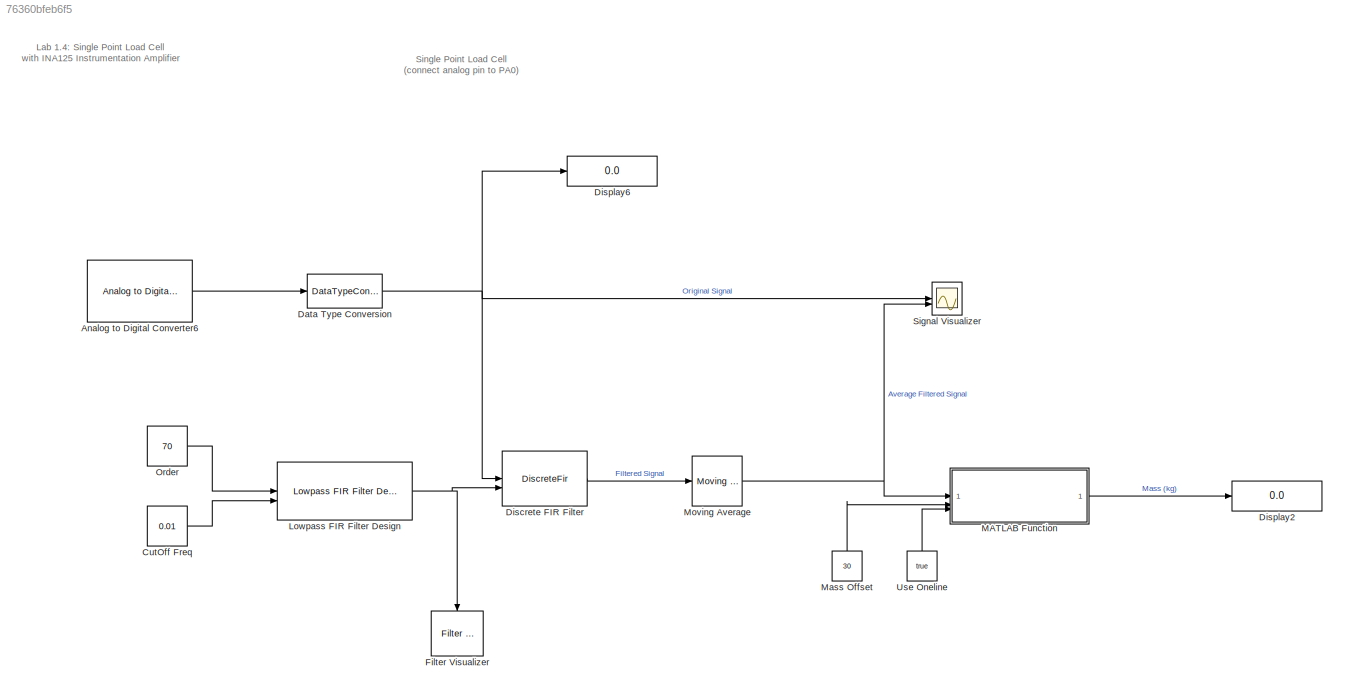
MODEL slx_76360bfeb6f5
KIND model
CONFIG AbsTol = auto
CONFIG EnableMultiTasking = on
CONFIG FixedStep = auto
CONFIG MaxStep = auto
CONFIG MinStep = auto
CONFIG RelTol = 1e-3
CONFIG SampleTimeConstraint = Unconstrained
CONFIG SolverName = FixedStepAuto
CONFIG StartTime = 0.0
CONFIG StopTime = inf
BLOCK [Reference] Analog to Digital Converter6  REF=stm32f4xxblockslib/Analog to Digital Converter
  LibrarySourceBlock = stm32g4xxblockslib/Analog to Digital Converter
  SourceBlock = stm32f4xxblockslib/Analog to Digital Converter
  SourceType = stm32cube.blocks.AnalogInput
BLOCK [Constant] CutOff Freq
  SampleTime = -1
  Value = 0.01
  VectorParams1D = off
BLOCK [DataTypeConversion] Data Type Conversion
  OutDataTypeStr = double
  RndMeth = Floor
  SaturateOnIntegerOverflow = off
BLOCK [DiscreteFir] Discrete FIR Filter
  CloseFcn = dspblkCoreblockFVToolHelper(gcbh,'close');
  CoefSource = Input port
  CopyFcn = dspblkCoreblockFVToolHelper(gcbh,'copy');
  DeleteFcn = dspblkCoreblockFVToolHelper(gcbh,'close');
  InputPortMap = u0,u1
  LoadFcn = dspblkCoreblockFVToolHelper(gcbh,'load');
  ModelCloseFcn = dspblkCoreblockFVToolHelper(gcbh,'close');
  OutputPortMap = o0
  PostSaveFcn = dspblkCoreblockFVToolHelper(gcbh,'postsave');
  PreSaveFcn = dspblkCoreblockFVToolHelper(gcbh,'presave');
BLOCK [Display] Display2
  Decimation = 1
BLOCK [Display] Display6
  Decimation = 1
BLOCK [Reference] Filter Visualizer   REF=dspsnks4/Filter
Visualizer
  Commented = on
  NameLocation = left
  SourceBlock = dspsnks4/Filter\nVisualizer
  SourceType = Filter Visualizer
BLOCK [Reference] Lowpass FIR Filter Design   REF=dspfiltersrcs/Lowpass FIR Filter Design
  LibrarySourceBlock = dspfdesign/Lowpass FIR Filter Design
  SourceBlock = dspfiltersrcs/Lowpass FIR Filter Design
  SourceType = dsp.simulink.LowpassFIRFilterDesign
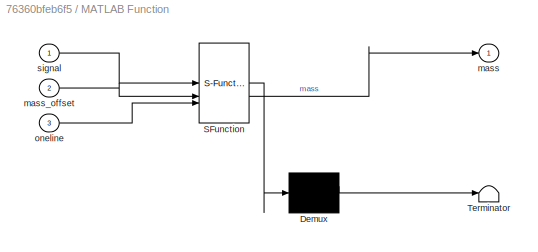
BLOCK [SubSystem] MATLAB Function
  ErrorFcn = Stateflow.Translate.translate
  PermitHierarchicalResolution = ExplicitOnly
  SFBlockType = MATLAB Function
  TreatAsAtomicUnit = on
BLOCK [Demux] MATLAB Function/ Demux 
  Outputs = 1
BLOCK [S-Function] MATLAB Function/ SFunction 
  EnableBusSupport = off
  FunctionName = sf_sfun
  PortCounts = [3 2]
  SFcnIsStateOwnerBlock = off
  SFunctionDeploymentMode = off
  Tag = Stateflow S-Function 2
BLOCK [Terminator] MATLAB Function/ Terminator 
BLOCK [Outport] MATLAB Function/mass
  VectorParamsAs1DForOutWhenUnconnected = off
BLOCK [Inport] MATLAB Function/mass_offset
  Port = 2
BLOCK [Inport] MATLAB Function/oneline
  Port = 3
BLOCK [Inport] MATLAB Function/signal
BLOCK [Constant] Mass Offset
  Value = 30
BLOCK [Reference] Moving Average  REF=dspstat3/Moving
Average
  SourceBlock = dspstat3/Moving\nAverage
  SourceType = dsp.simulink.MovingAverage
BLOCK [Constant] Order
  SampleTime = -1
  Value = 70
  VectorParams1D = off
BLOCK [Scope] Signal Visualizer
  ActiveDisplayYMaximum = 280.92841792775408
  ActiveDisplayYMinimum = -334.16409269377715
  DataLoggingDecimation = 1
  DataLoggingLimitDataPoints = on
  DataLoggingSaveFormat = Array
  DataLoggingVariableName = ScopeData2
  Floating = off
  GraphicalSettings = {"AxesScalingProperties":{"AlignXAxis":"Center","AlignYAxis":"Center","AutoScaleXAxisLimits":false,"AxesScaling":"Manual","AxesScalingNumUpdates":10,"ExpandOnly":true,"ScaleAxesLimitsAtStop":false,"XAxisDataRange":100,"YAxisDataRange":80},"DisplayProperties":{"ColorOrder":["auto","auto","auto","auto","auto","auto","auto","auto","auto","auto","auto","auto","auto","auto","auto","auto","auto","auto",...<+2116ch>
  MultipleDisplayCache = [{"MaxYLimMag":230.625,"MaxYLimReal":280.92841792775408,"MinYLimMag":34.375000000000007,"MinYLimReal":-334.16409269377715,"PlotAsMagnitudePhase":false,"ShowGrid":true,"ShowLegend":false,"Title":"%<SignalLabel>","YLabel":""}]
  NumInputPorts = 2
  ScopeFrameLocation = window
  WasSavedAsWebScope = on
  WindowPosition = [0.000000,36.000000,1536.000000,793.000000,]
BLOCK [Constant] Use Oneline
  Value = true
ANNOTATION (root): Single Point Load Cell (connect analog pin to PA0)
ANNOTATION (root): Lab 1.4: Single Point Load Cell with INA125 Instrumentation Amplifier
LINE Analog to Digital Converter6:1 -> Data Type Conversion:1
LINE CutOff Freq:1 -> Lowpass FIR Filter Design :2
NET Data Type Conversion:1 -> Discrete FIR Filter:1, Display6:1, Signal Visualizer:1
LINE Discrete FIR Filter:1 -> Moving Average:1
NET Lowpass FIR Filter Design :1 -> Discrete FIR Filter:2, Filter Visualizer :1
LINE MATLAB Function:1 -> Display2:1
LINE Mass Offset:1 -> MATLAB Function:2
NET Moving Average:1 -> MATLAB Function:1, Signal Visualizer:2
LINE Order:1 -> Lowpass FIR Filter Design :1
LINE Use Oneline:1 -> MATLAB Function:3
note: NET lines group one-source signal fan-out (src -> all destinations, sorted); 1:1 wires keep LINE
CHART MATLAB Function states=1 transitions=1
  STATE_LABEL 'eML_blk_kernel()'
  STATE_LABEL 'SCRIPT:\nfunction mass = fcn(signal, mass_offset, oneline)\n\nif oneline\n    mass = 3.178026669113850E+00*signal - 1.168297969921710E+02;\nelse\n    if signal < 970\n        mass = -1.352093207936490E-14*signal^6 + 4.432131629887790E-11*signal^5 - 5.738741720106180E-08*signal^4 + 3.737936611475020E-05*signal^3 - 1.297904608080040E-02*signal^2 + 5.576169021073690E+00*signal - 3.038874724538260E+02;\n    e...<+624ch>'
CHART  states=0 transitions=0
